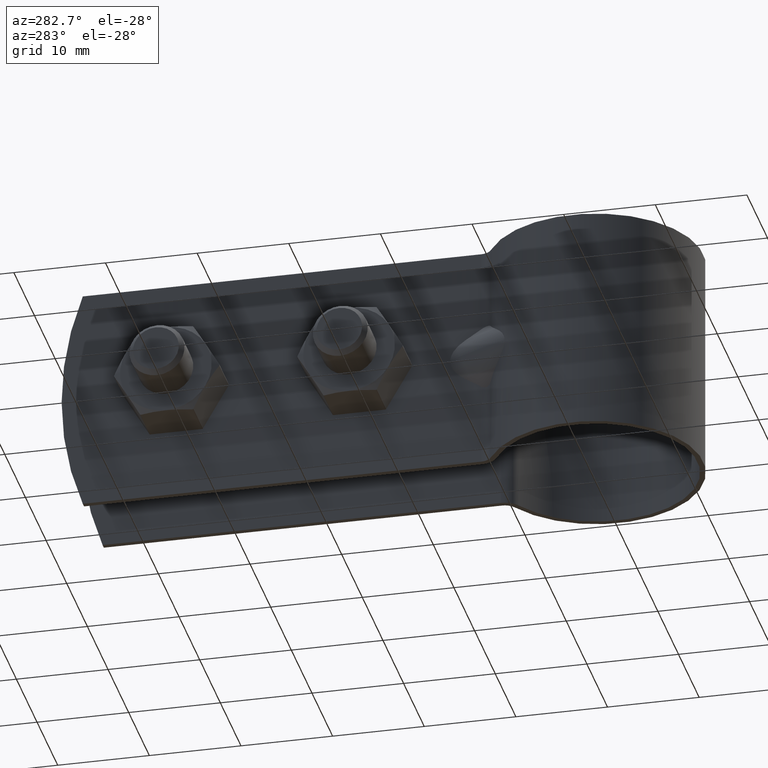
[diagram: clean part render]
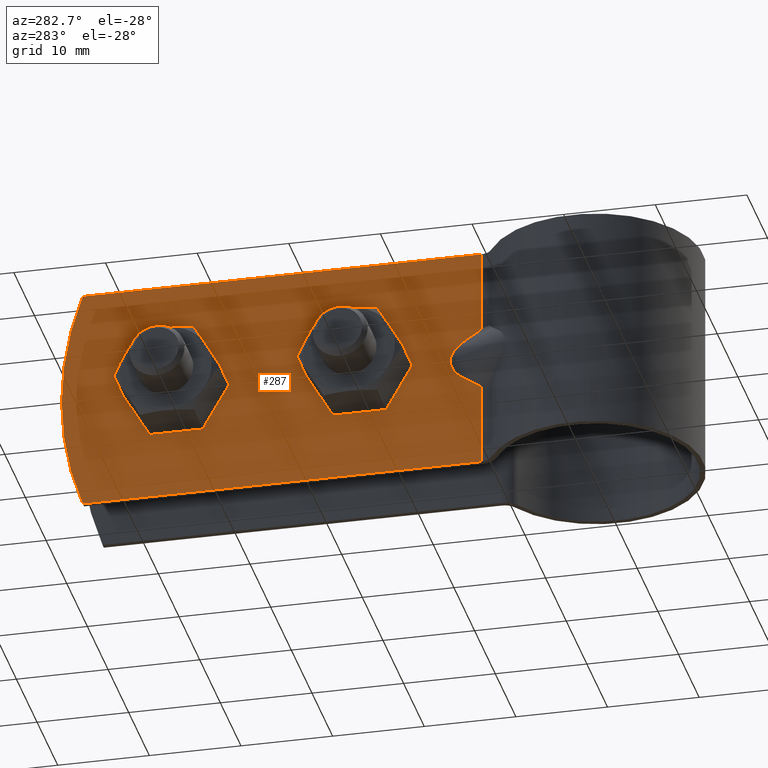
[diagram: same view with one face highlighted and labeled with its STEP entity id]
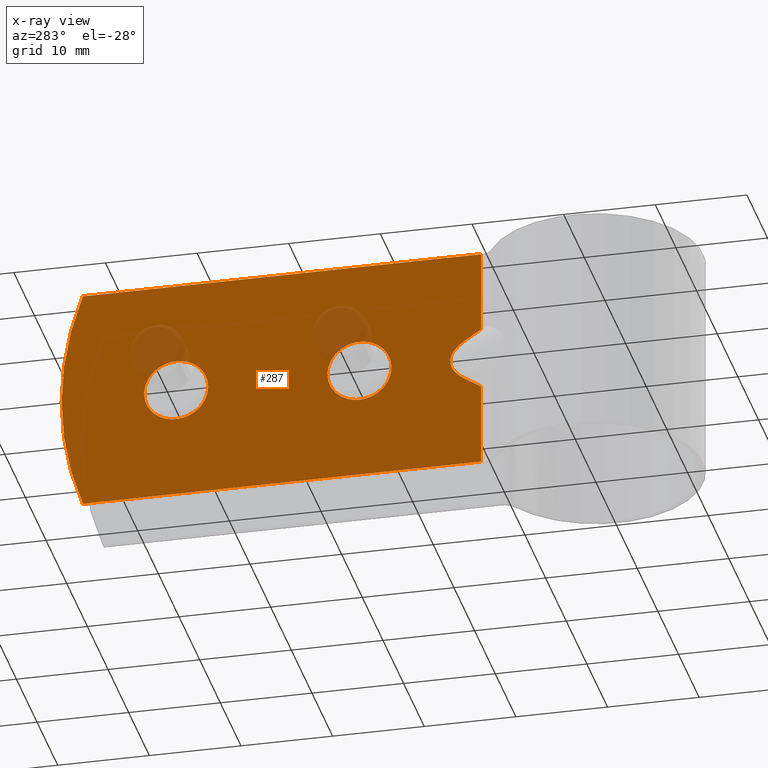
[diagram: x-ray of the same camera — body ghosted, the highlighted face saturated]
A machine part, auxiliary view. The second image highlights one B-rep face of the part: STEP entity #287.
The next image is the same camera in x-ray: the body ghosted, the highlighted face saturated — about 5% of this face is hidden behind the body in this view.
In plain terms, the highlighted planar face has unit normal (-1, 0, 0).
Its self-contained STEP definition (entity closure, byte-faithful):
#287 = ADVANCED_FACE( '', ( #414, #415, #416 ), #417, .T. );
#414 = FACE_OUTER_BOUND( '', #646, .T. );
#415 = FACE_BOUND( '', #647, .T. );
#416 = FACE_BOUND( '', #648, .T. );
#417 = PLANE( '', #649 );
#646 = EDGE_LOOP( '', ( #982, #983, #984, #985, #986, #987, #988, #989 ) );
#647 = EDGE_LOOP( '', ( #990 ) );
#648 = EDGE_LOOP( '', ( #991 ) );
#649 = AXIS2_PLACEMENT_3D( '', #992, #993, #994 );
#982 = ORIENTED_EDGE( '', *, *, #1653, .F. );
#983 = ORIENTED_EDGE( '', *, *, #1687, .T. );
#984 = ORIENTED_EDGE( '', *, *, #1688, .F. );
#985 = ORIENTED_EDGE( '', *, *, #1681, .T. );
#986 = ORIENTED_EDGE( '', *, *, #1625, .T. );
#987 = ORIENTED_EDGE( '', *, *, #1689, .T. );
#988 = ORIENTED_EDGE( '', *, *, #1650, .F. );
#989 = ORIENTED_EDGE( '', *, *, #1648, .F. );
#990 = ORIENTED_EDGE( '', *, *, #1677, .T. );
#991 = ORIENTED_EDGE( '', *, *, #1673, .T. );
#992 = CARTESIAN_POINT( '', ( -5.10000000000000, 57.1578590263894, -12.5000000000000 ) );
#993 = DIRECTION( '', ( -1.00000000000000, 6.06692130572647E-017, 0.000000000000000 ) );
#994 = DIRECTION( '', ( -6.06692130572647E-017, -1.00000000000000, 0.000000000000000 ) );
#1625 = EDGE_CURVE( '', #1873, #1871, #1874, .T. );
#1648 = EDGE_CURVE( '', #1912, #1914, #1915, .T. );
#1650 = EDGE_CURVE( '', #1914, #1917, #1918, .T. );
#1653 = EDGE_CURVE( '', #1920, #1912, #1922, .T. );
#1673 = EDGE_CURVE( '', #1956, #1956, #1957, .F. );
#1677 = EDGE_CURVE( '', #1964, #1964, #1965, .F. );
#1681 = EDGE_CURVE( '', #1972, #1873, #1973, .T. );
#1687 = EDGE_CURVE( '', #1920, #1982, #1983, .T. );
#1688 = EDGE_CURVE( '', #1972, #1982, #1984, .T. );
#1689 = EDGE_CURVE( '', #1871, #1917, #1985, .T. );
#1871 = VERTEX_POINT( '', #2275 );
#1873 = VERTEX_POINT( '', #2277 );
#1874 = LINE( '', #2278, #2279 );
#1912 = VERTEX_POINT( '', #2369 );
#1914 = VERTEX_POINT( '', #2372 );
#1915 = ELLIPSE( '', #2373, 8.81075705834106, 4.00000000000000 );
#1917 = VERTEX_POINT( '', #2376 );
#1918 = LINE( '', #2377, #2378 );
#1920 = VERTEX_POINT( '', #2380 );
#1922 = LINE( '', #2382, #2383 );
#1956 = VERTEX_POINT( '', #2467 );
#1957 = CIRCLE( '', #2468, 3.50000000000000 );
#1964 = VERTEX_POINT( '', #2475 );
#1965 = CIRCLE( '', #2476, 3.50000000000000 );
#1972 = VERTEX_POINT( '', #2483 );
#1973 = CIRCLE( '', #2484, 35.0000000000000 );
#1982 = VERTEX_POINT( '', #2495 );
#1983 = LINE( '', #2496, #2497 );
#1984 = LINE( '', #2498, #2499 );
#1985 = LINE( '', #2500, #2501 );
#2275 = CARTESIAN_POINT( '', ( -5.10000000000000, 11.3851701787896, -12.5000000000000 ) );
#2277 = CARTESIAN_POINT( '', ( -5.10000000000000, 54.8496011029444, -12.5000000000000 ) );
#2278 = CARTESIAN_POINT( '', ( -5.10000000000000, 57.1578590263894, -12.5000000000000 ) );
#2279 = VECTOR( '', #2993, 1000.00000000000 );
#2369 = CARTESIAN_POINT( '', ( -5.10000000000000, 13.1511064806350, 2.29430574540416 ) );
#2372 = CARTESIAN_POINT( '', ( -5.10000000000000, 13.1511064806350, -2.29430574540421 ) );
#2373 = AXIS2_PLACEMENT_3D( '', #3032, #3033, #3034 );
#2376 = CARTESIAN_POINT( '', ( -5.10000000000000, 11.3851701787896, -3.43927814349180 ) );
#2377 = CARTESIAN_POINT( '', ( -5.10000000000000, 39.4748960212719, 14.7731345725737 ) );
#2378 = VECTOR( '', #3036, 1000.00000000000 );
#2380 = CARTESIAN_POINT( '', ( -5.10000000000000, 11.3851701787896, 3.43927814349174 ) );
#2382 = CARTESIAN_POINT( '', ( -5.10000000000000, 50.8867461305474, -22.1721859271324 ) );
#2383 = VECTOR( '', #3043, 1000.00000000000 );
#2467 = CARTESIAN_POINT( '', ( -5.10000000000000, 21.1578590263894, -8.67361737988404E-016 ) );
#2468 = AXIS2_PLACEMENT_3D( '', #3079, #3080, #3081 );
#2475 = CARTESIAN_POINT( '', ( -5.10000000000000, 41.1578590263894, -8.67361737988404E-016 ) );
#2476 = AXIS2_PLACEMENT_3D( '', #3091, #3092, #3093 );
#2483 = CARTESIAN_POINT( '', ( -5.10000000000000, 54.8496011029445, 12.5000000000000 ) );
#2484 = AXIS2_PLACEMENT_3D( '', #3103, #3104, #3105 );
#2495 = CARTESIAN_POINT( '', ( -5.10000000000000, 11.3851701787896, 12.5000000000000 ) );
#2496 = CARTESIAN_POINT( '', ( -5.10000000000000, 11.3851701787896, -12.5000000000000 ) );
#2497 = VECTOR( '', #3117, 1000.00000000000 );
#2498 = CARTESIAN_POINT( '', ( -5.10000000000000, 57.1578590263894, 12.5000000000000 ) );
#2499 = VECTOR( '', #3118, 1000.00000000000 );
#2500 = CARTESIAN_POINT( '', ( -5.10000000000000, 11.3851701787896, -12.5000000000000 ) );
#2501 = VECTOR( '', #3119, 1000.00000000000 );
#2993 = DIRECTION( '', ( -6.06692130572647E-017, -1.00000000000000, 0.000000000000000 ) );
#3032 = CARTESIAN_POINT( '', ( -5.10000000000000, 5.93375682456130, -3.07505438184128E-014 ) );
#3033 = DIRECTION( '', ( -1.00000000000000, 6.06692130572647E-017, 0.000000000000000 ) );
#3034 = DIRECTION( '', ( 6.06692130572647E-017, 1.00000000000000, 9.96825944130074E-016 ) );
#3036 = DIRECTION( '', ( -5.09056978337516E-017, -0.839069690679893, -0.544023946331730 ) );
#3043 = DIRECTION( '', ( 5.09056978337516E-017, 0.839069690679893, -0.544023946331730 ) );
#3079 = CARTESIAN_POINT( '', ( -5.10000000000000, 24.6578590263894, -8.67361737988404E-016 ) );
#3080 = DIRECTION( '', ( -1.00000000000000, 6.06692130572647E-017, 0.000000000000000 ) );
#3081 = DIRECTION( '', ( -6.06692130572647E-017, -1.00000000000000, 0.000000000000000 ) );
#3091 = CARTESIAN_POINT( '', ( -5.10000000000000, 44.6578590263894, -8.67361737988404E-016 ) );
#3092 = DIRECTION( '', ( -1.00000000000000, 6.06692130572647E-017, 0.000000000000000 ) );
#3093 = DIRECTION( '', ( -6.06692130572647E-017, -1.00000000000000, 0.000000000000000 ) );
#3103 = CARTESIAN_POINT( '', ( -5.10000000000000, 22.1578590263894, 2.77555756156289E-014 ) );
#3104 = DIRECTION( '', ( -1.00000000000000, 6.06692130572647E-017, 0.000000000000000 ) );
#3105 = DIRECTION( '', ( -6.06692130572647E-017, -1.00000000000000, 0.000000000000000 ) );
#3117 = DIRECTION( '', ( 0.000000000000000, 0.000000000000000, 1.00000000000000 ) );
#3118 = DIRECTION( '', ( -6.06692130572647E-017, -1.00000000000000, 0.000000000000000 ) );
#3119 = DIRECTION( '', ( 0.000000000000000, 0.000000000000000, 1.00000000000000 ) );